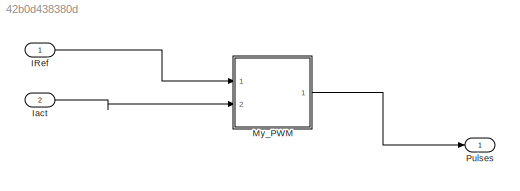
MODEL slx_42b0d438380d
KIND model
CONFIG AbsTol = auto
CONFIG EnableMultiTasking = off
CONFIG FixedStep = auto
CONFIG MaxStep = auto
CONFIG MinStep = auto
CONFIG RelTol = 1e-3
CONFIG SampleTimeConstraint = Unconstrained
CONFIG Solver = ode23tb
CONFIG SolverName = ode23tb
CONFIG StartTime = 0.0
CONFIG StopTime = 10
BLOCK [Inport] IRef 
  IconDisplay = Port number
BLOCK [Inport] Iact 
  IconDisplay = Port number
  Port = 2
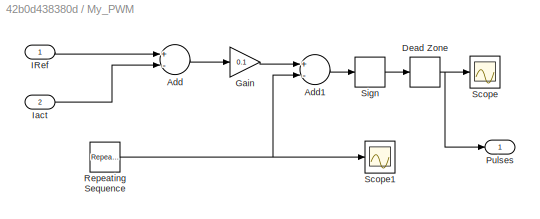
BLOCK [SubSystem] My_PWM 
  Ports = [2, 1]
  RequestExecContextInheritance = off
BLOCK [Sum] My_PWM /Add
  InputSameDT = off
  Inputs = +-
  OutDataTypeStr = Inherit: Inherit via internal rule
  Ports = [2, 1]
  SaturateOnIntegerOverflow = off
BLOCK [Sum] My_PWM /Add1
  InputSameDT = off
  Inputs = +-
  OutDataTypeStr = Inherit: Inherit via internal rule
  Ports = [2, 1]
  SaturateOnIntegerOverflow = off
BLOCK [DeadZone] My_PWM /Dead Zone
  LowerValue = -10
  UpperValue = 0
BLOCK [Gain] My_PWM /Gain
  Gain = 0.1
  OutDataTypeStr = Inherit: Inherit via internal rule
  ParamDataTypeStr = Inherit: Inherit via internal rule
  SaturateOnIntegerOverflow = off
BLOCK [Inport] My_PWM /IRef 
  IconDisplay = Port number
BLOCK [Inport] My_PWM /Iact 
  IconDisplay = Port number
  Port = 2
BLOCK [Outport] My_PWM /Pulses 
  IconDisplay = Port number
BLOCK [Reference] My_PWM /Repeating Sequence  REF=simulink/Sources/Repeating
Sequence
  Ports = [0, 1]
  SourceBlock = simulink/Sources/Repeating\nSequence
  SourceProductBaseCode = SL
  SourceProductName = Simulink
  SourceType = Repeating table
BLOCK [Scope] My_PWM /Scope
  Floating = off
  NumInputPorts = 1
  Ports = [1]
  ScopeSpecificationString = Simulink.scopes.TimeScopeBlockCfg('CurrentConfiguration', extmgr.ConfigurationSet(extmgr.Configuration('Core','General UI',true),extmgr.Configuration('Core','Source UI',true),extmgr.Configuration('Sources','WiredSimulink',true),extmgr.Configuration('Visuals','Time Domain',true,'SerializedDisplays',{struct('MinYLimReal','-0.125','MaxYLimReal','1.125','YLabelReal','','MinYLimMag','0.00000','MaxYLimM...<+1350ch>
BLOCK [Scope] My_PWM /Scope1
  Floating = off
  NumInputPorts = 1
  Ports = [1]
  ScopeSpecificationString = Simulink.scopes.TimeScopeBlockCfg('CurrentConfiguration', extmgr.ConfigurationSet(extmgr.Configuration('Core','General UI',true),extmgr.Configuration('Core','Source UI',true),extmgr.Configuration('Sources','WiredSimulink',true,'DataLoggingVariableName','ScopeData1'),extmgr.Configuration('Visuals','Time Domain',true,'SerializedDisplays',{struct('MinYLimReal','-0.125','MaxYLimReal','1.125','YLabelRe...<+1401ch>
BLOCK [Signum] My_PWM /Sign
BLOCK [Outport] Pulses 
  IconDisplay = Port number
LINE IRef :1 -> My_PWM :1
LINE Iact :1 -> My_PWM :2
LINE My_PWM /Add1:1 -> My_PWM /Sign:1
LINE My_PWM /Add:1 -> My_PWM /Gain:1
NET My_PWM /Dead Zone:1 -> My_PWM /Pulses :1, My_PWM /Scope:1
LINE My_PWM /Gain:1 -> My_PWM /Add1:1
LINE My_PWM /IRef :1 -> My_PWM /Add:1
LINE My_PWM /Iact :1 -> My_PWM /Add:2
NET My_PWM /Repeating Sequence:1 -> My_PWM /Add1:2, My_PWM /Scope1:1
LINE My_PWM /Sign:1 -> My_PWM /Dead Zone:1
LINE My_PWM :1 -> Pulses :1
note: NET lines group one-source signal fan-out (src -> all destinations, sorted); 1:1 wires keep LINE
